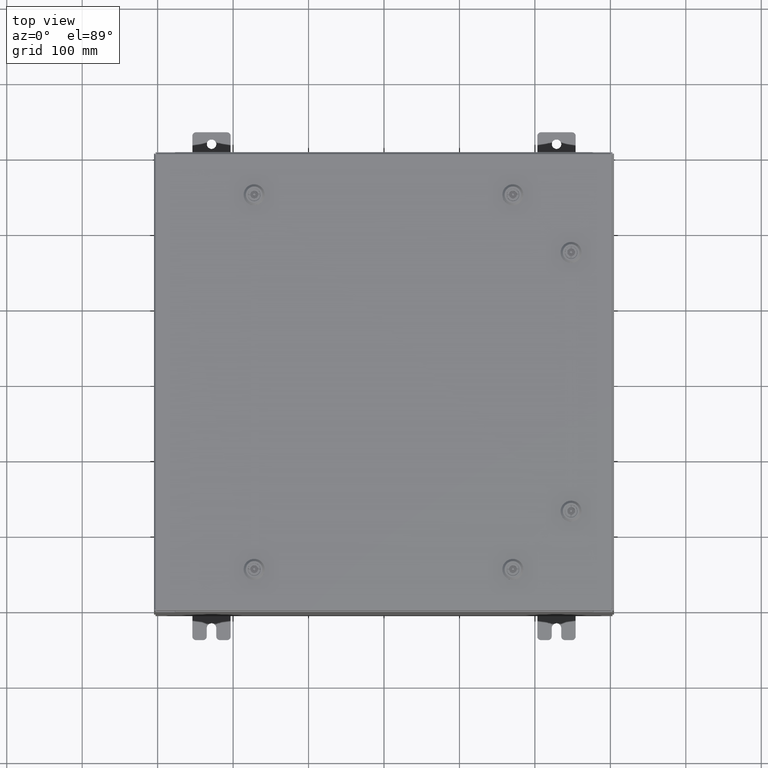
[diagram: clean part render]
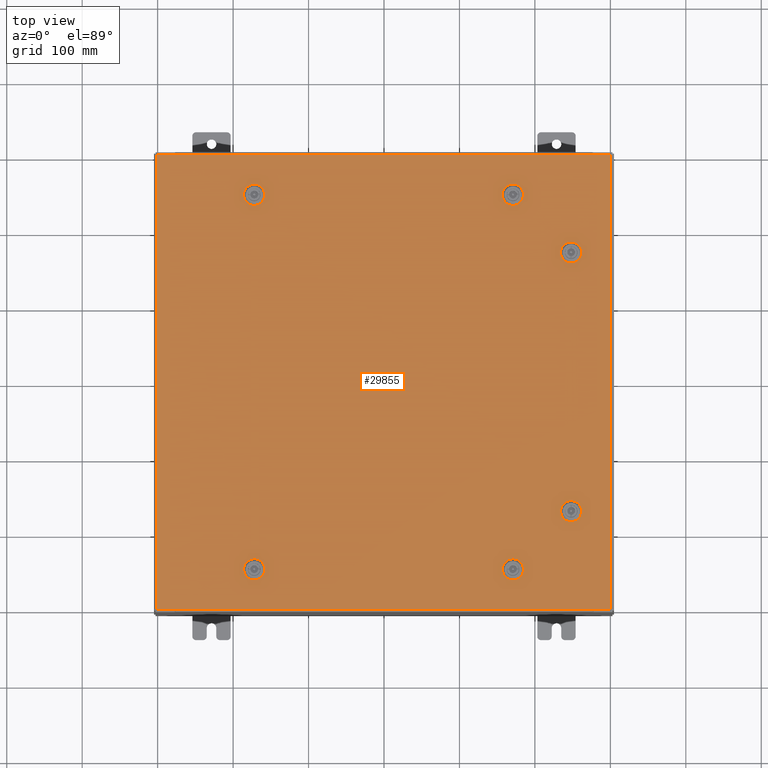
[diagram: same view with one face highlighted and labeled with its STEP entity id]
A machine part, top view. The second image highlights one B-rep face of the part: STEP entity #29855.
In plain terms, the highlighted planar face has unit normal (0, 0, -1).
Its self-contained STEP definition (entity closure, byte-faithful):
#58 = CARTESIAN_POINT ( 'NONE',  ( -6.307499999999987700, 9.787799999999991800, 0.0000000000000000000 ) ) ;
#100 = CARTESIAN_POINT ( 'NONE',  ( 6.749999999999983100, -9.787799999999993600, -2.049967404400325100E-013 ) ) ;
#138 = VERTEX_POINT ( 'NONE', #25671 ) ;
#291 = ORIENTED_EDGE ( 'NONE', *, *, #4212, .F. ) ;
#699 = DIRECTION ( 'NONE',  ( -0.0000000000000000000, -6.982962677686266700E-015, 1.000000000000000000 ) ) ;
#871 = ORIENTED_EDGE ( 'NONE', *, *, #58050, .T. ) ;
#1060 = CARTESIAN_POINT ( 'NONE',  ( 9.392800000000017100, -6.949452375267905600, -4.852776656685395200E-014 ) ) ;
#1373 = EDGE_CURVE ( 'NONE', #26114, #44926, #14703, .T. ) ;
#1891 = CARTESIAN_POINT ( 'NONE',  ( -6.749999999999984900, -9.787799999999993600, -2.521317385144147400E-013 ) ) ;
#1910 = CARTESIAN_POINT ( 'NONE',  ( 11.84980000000000200, 11.84980000000000000, 8.878505979408856000E-016 ) ) ;
#2145 = CARTESIAN_POINT ( 'NONE',  ( -6.749999999999984900, -9.787799999999993600, -2.521317385144147400E-013 ) ) ;
#2211 = EDGE_CURVE ( 'NONE', #60257, #46374, #54651, .T. ) ;
#2861 = CARTESIAN_POINT ( 'NONE',  ( -6.949452375267869200, -9.392799999999997600, -2.493734682567286900E-013 ) ) ;
#2939 = VECTOR ( 'NONE', #44319, 39.37007874015748100 ) ;
#2987 = LINE ( 'NONE', #36987, #53613 ) ;
#3024 = VERTEX_POINT ( 'NONE', #47813 ) ;
#3169 = VECTOR ( 'NONE', #27277, 39.37007874015748100 ) ;
#3298 = DIRECTION ( 'NONE',  ( 1.000000000000000000, 0.0000000000000000000, 0.0000000000000000000 ) ) ;
#3349 = ORIENTED_EDGE ( 'NONE', *, *, #29522, .T. ) ;
#3482 = ORIENTED_EDGE ( 'NONE', *, *, #53968, .F. ) ;
#3778 = CARTESIAN_POINT ( 'NONE',  ( 6.949452375267864700, -10.18279999999999000, -2.063622422052470700E-013 ) ) ;
#4036 = CARTESIAN_POINT ( 'NONE',  ( -6.949452375267869200, 9.392799999999995800, 0.0000000000000000000 ) ) ;
#4212 = EDGE_CURVE ( 'NONE', #46374, #28440, #53020, .T. ) ;
#4247 = DIRECTION ( 'NONE',  ( 5.478697338139235000E-015, 1.000000000000000000, 6.982962677686265900E-015 ) ) ;
#4709 = ORIENTED_EDGE ( 'NONE', *, *, #7181, .F. ) ;
#5011 = DIRECTION ( 'NONE',  ( 1.000000000000000000, 0.0000000000000000000, 6.982962677686287200E-015 ) ) ;
#5154 = CIRCLE ( 'NONE', #42552, 0.4424999999999972800 ) ;
#5276 = CIRCLE ( 'NONE', #7773, 0.4424999999999972800 ) ;
#5581 = FACE_BOUND ( 'NONE', #10274, .T. ) ;
#5642 = DIRECTION ( 'NONE',  ( -1.000000000000000000, -0.0000000000000000000, -0.0000000000000000000 ) ) ;
#6048 = EDGE_LOOP ( 'NONE', ( #54878, #11888, #40292, #60958, #3482 ) ) ;
#6484 = AXIS2_PLACEMENT_3D ( 'NONE', #43636, #27601, #54415 ) ;
#6790 = CIRCLE ( 'NONE', #45139, 0.4424999999999972800 ) ;
#6887 = DIRECTION ( 'NONE',  ( 0.0000000000000000000, 0.0000000000000000000, 1.000000000000000000 ) ) ;
#7053 = DIRECTION ( 'NONE',  ( 0.0000000000000000000, 1.000000000000000000, 6.982962677686287200E-015 ) ) ;
#7181 = EDGE_CURVE ( 'NONE', #54463, #33076, #10640, .T. ) ;
#7773 = AXIS2_PLACEMENT_3D ( 'NONE', #62016, #32684, #3298 ) ;
#7850 = EDGE_CURVE ( 'NONE', #42776, #21717, #11345, .T. ) ;
#8090 = ORIENTED_EDGE ( 'NONE', *, *, #46194, .T. ) ;
#8447 = DIRECTION ( 'NONE',  ( 0.0000000000000000000, 0.0000000000000000000, 1.000000000000000000 ) ) ;
#8565 = CARTESIAN_POINT ( 'NONE',  ( 9.392800000000015400, 6.949452375267905600, 0.0000000000000000000 ) ) ;
#8584 = CARTESIAN_POINT ( 'NONE',  ( 6.949452375267864700, 10.18279999999999000, 0.0000000000000000000 ) ) ;
#8648 = FACE_BOUND ( 'NONE', #44821, .T. ) ;
#8655 = EDGE_CURVE ( 'NONE', #44926, #39794, #37386, .T. ) ;
#8834 = VERTEX_POINT ( 'NONE', #25034 ) ;
#8995 = CARTESIAN_POINT ( 'NONE',  ( -6.550547624732099700, 9.392799999999995800, 0.0000000000000000000 ) ) ;
#9792 = CARTESIAN_POINT ( 'NONE',  ( -6.550547624732093500, 10.18279999999998300, 0.0000000000000000000 ) ) ;
#10274 = EDGE_LOOP ( 'NONE', ( #4709, #41333, #23676, #42194, #44807 ) ) ;
#10476 = DIRECTION ( 'NONE',  ( 0.0000000000000000000, 0.0000000000000000000, 1.000000000000000000 ) ) ;
#10640 = LINE ( 'NONE', #34252, #26736 ) ;
#11110 = EDGE_CURVE ( 'NONE', #54151, #62549, #22520, .T. ) ;
#11137 = CIRCLE ( 'NONE', #59556, 0.4424999999999972800 ) ;
#11345 = CIRCLE ( 'NONE', #30640, 0.4424999999999983400 ) ;
#11879 = CARTESIAN_POINT ( 'NONE',  ( 7.192499999999980400, -9.787799999999993600, -2.019067794551563600E-013 ) ) ;
#11888 = ORIENTED_EDGE ( 'NONE', *, *, #43242, .F. ) ;
#12918 = PLANE ( 'NONE',  #60109 ) ;
#13214 = ORIENTED_EDGE ( 'NONE', *, *, #11110, .F. ) ;
#13349 = AXIS2_PLACEMENT_3D ( 'NONE', #57799, #28478, #62749 ) ;
#13429 = VERTEX_POINT ( 'NONE', #47458 ) ;
#14154 = LINE ( 'NONE', #38514, #51745 ) ;
#14248 = VECTOR ( 'NONE', #19922, 39.37007874015748100 ) ;
#14305 = EDGE_CURVE ( 'NONE', #62549, #47387, #16171, .T. ) ;
#14409 = EDGE_CURVE ( 'NONE', #15856, #49526, #14650, .T. ) ;
#14554 = VERTEX_POINT ( 'NONE', #58093 ) ;
#14650 = LINE ( 'NONE', #47418, #39213 ) ;
#14702 = CIRCLE ( 'NONE', #57473, 0.4424999999999972800 ) ;
#14703 = CIRCLE ( 'NONE', #53799, 0.4424999999999972800 ) ;
#14893 = ORIENTED_EDGE ( 'NONE', *, *, #33927, .F. ) ;
#14939 = DIRECTION ( 'NONE',  ( -6.982962677686266700E-015, -6.982962677686266700E-015, 1.000000000000000000 ) ) ;
#15038 = CARTESIAN_POINT ( 'NONE',  ( 6.749999999999983100, 9.787799999999993600, -4.713499807438223100E-014 ) ) ;
#15287 = EDGE_LOOP ( 'NONE', ( #23316, #60840, #48790, #291 ) ) ;
#15568 = DIRECTION ( 'NONE',  ( -0.0000000000000000000, -6.982962677686266700E-015, 1.000000000000000000 ) ) ;
#15856 = VERTEX_POINT ( 'NONE', #8584 ) ;
#16071 = CARTESIAN_POINT ( 'NONE',  ( -11.84979999999999500, -11.84980000000000000, -2.048885995248197400E-016 ) ) ;
#16171 = LINE ( 'NONE', #22322, #3169 ) ;
#17204 = DIRECTION ( 'NONE',  ( 6.982962677686266700E-015, -0.0000000000000000000, 1.000000000000000000 ) ) ;
#17814 = CARTESIAN_POINT ( 'NONE',  ( -6.307499999999987700, -9.787799999999993600, -2.521317385144147400E-013 ) ) ;
#17837 = DIRECTION ( 'NONE',  ( -1.000000000000000000, 0.0000000000000000000, -0.0000000000000000000 ) ) ;
#18599 = FACE_BOUND ( 'NONE', #6048, .T. ) ;
#18756 = CARTESIAN_POINT ( 'NONE',  ( 9.392800000000011800, -6.550547624732132600, 0.0000000000000000000 ) ) ;
#18771 = VECTOR ( 'NONE', #56945, 39.37007874015748100 ) ;
#19628 = DIRECTION ( 'NONE',  ( -1.000000000000000000, 1.643609201441752500E-014, 0.0000000000000000000 ) ) ;
#19737 = EDGE_CURVE ( 'NONE', #43617, #54151, #53558, .T. ) ;
#19922 = DIRECTION ( 'NONE',  ( 1.000000000000000000, -1.095739467627835000E-014, 6.982962677686171300E-015 ) ) ;
#19929 = DIRECTION ( 'NONE',  ( -6.982962677686266700E-015, -6.982962677686266700E-015, 1.000000000000000000 ) ) ;
#19988 = DIRECTION ( 'NONE',  ( -1.000000000000000000, 0.0000000000000000000, 6.982962677686269100E-015 ) ) ;
#20188 = DIRECTION ( 'NONE',  ( 0.0000000000000000000, 1.000000000000000000, 6.982962677686269100E-015 ) ) ;
#20426 = ORIENTED_EDGE ( 'NONE', *, *, #36097, .F. ) ;
#20857 = VERTEX_POINT ( 'NONE', #58 ) ;
#21042 = EDGE_CURVE ( 'NONE', #31465, #13429, #31241, .T. ) ;
#21717 = VERTEX_POINT ( 'NONE', #37373 ) ;
#21903 = LINE ( 'NONE', #41934, #59501 ) ;
#22285 = EDGE_CURVE ( 'NONE', #3024, #42776, #21903, .T. ) ;
#22322 = CARTESIAN_POINT ( 'NONE',  ( 10.18280000000000200, 6.949452375267901200, 0.0000000000000000000 ) ) ;
#22494 = EDGE_CURVE ( 'NONE', #138, #26114, #53381, .T. ) ;
#22520 = CIRCLE ( 'NONE', #6484, 0.4424999999999972800 ) ;
#22577 = VECTOR ( 'NONE', #19628, 39.37007874015748100 ) ;
#23316 = ORIENTED_EDGE ( 'NONE', *, *, #2211, .F. ) ;
#23676 = ORIENTED_EDGE ( 'NONE', *, *, #44605, .F. ) ;
#23938 = AXIS2_PLACEMENT_3D ( 'NONE', #46307, #699, #20188 ) ;
#24411 = CARTESIAN_POINT ( 'NONE',  ( 6.749999999999983100, -9.787799999999993600, -2.049967404400325100E-013 ) ) ;
#24530 = VERTEX_POINT ( 'NONE', #31307 ) ;
#24573 = EDGE_CURVE ( 'NONE', #8834, #54311, #11137, .T. ) ;
#24589 = CARTESIAN_POINT ( 'NONE',  ( 9.392800000000015400, 6.949452375267905600, 0.0000000000000000000 ) ) ;
#24629 = DIRECTION ( 'NONE',  ( -0.0000000000000000000, -6.982962677686266700E-015, 1.000000000000000000 ) ) ;
#24914 = VERTEX_POINT ( 'NONE', #28216 ) ;
#25034 = CARTESIAN_POINT ( 'NONE',  ( -6.550547624732093500, -10.18279999999998400, -2.548900087721007400E-013 ) ) ;
#25125 = CARTESIAN_POINT ( 'NONE',  ( 11.84980000000000200, 11.84980000000000000, 8.878505979408856000E-016 ) ) ;
#25151 = EDGE_CURVE ( 'NONE', #20857, #46148, #60298, .T. ) ;
#25239 = CARTESIAN_POINT ( 'NONE',  ( 6.949452375267867400, 9.392799999999995800, -4.852776656685374400E-014 ) ) ;
#25671 = CARTESIAN_POINT ( 'NONE',  ( 6.550547624732091700, -10.18279999999998400, -2.091477791901901000E-013 ) ) ;
#25829 = VERTEX_POINT ( 'NONE', #1910 ) ;
#26061 = ORIENTED_EDGE ( 'NONE', *, *, #21042, .T. ) ;
#26114 = VERTEX_POINT ( 'NONE', #3778 ) ;
#26359 = DIRECTION ( 'NONE',  ( 6.982962677686266700E-015, -0.0000000000000000000, 1.000000000000000000 ) ) ;
#26736 = VECTOR ( 'NONE', #36492, 39.37007874015748100 ) ;
#27277 = DIRECTION ( 'NONE',  ( -5.478697338139235000E-015, 1.000000000000000000, -0.0000000000000000000 ) ) ;
#27429 = CIRCLE ( 'NONE', #43770, 0.4424999999999983400 ) ;
#27457 = ORIENTED_EDGE ( 'NONE', *, *, #8655, .F. ) ;
#27531 = ORIENTED_EDGE ( 'NONE', *, *, #7850, .F. ) ;
#27601 = DIRECTION ( 'NONE',  ( 0.0000000000000000000, 0.0000000000000000000, 1.000000000000000000 ) ) ;
#27627 = CARTESIAN_POINT ( 'NONE',  ( 6.550547624732099700, 9.392799999999997600, -4.574222958191072400E-014 ) ) ;
#28067 = EDGE_LOOP ( 'NONE', ( #26061, #8090, #3349, #871 ) ) ;
#28216 = CARTESIAN_POINT ( 'NONE',  ( 10.18280000000000700, -6.550547624732132600, -4.574222958191090100E-014 ) ) ;
#28440 = VERTEX_POINT ( 'NONE', #52702 ) ;
#28452 = ORIENTED_EDGE ( 'NONE', *, *, #14305, .F. ) ;
#28478 = DIRECTION ( 'NONE',  ( -0.0000000000000000000, -6.982962677686266700E-015, 1.000000000000000000 ) ) ;
#28613 = VECTOR ( 'NONE', #38604, 39.37007874015748100 ) ;
#28760 = DIRECTION ( 'NONE',  ( 1.000000000000000000, 0.0000000000000000000, 6.982962677686287200E-015 ) ) ;
#29304 = DIRECTION ( 'NONE',  ( 1.000000000000000000, 1.643609201441752500E-014, 7.785697190085976300E-029 ) ) ;
#29364 = CARTESIAN_POINT ( 'NONE',  ( -6.949452375267865600, 10.18279999999999000, 0.0000000000000000000 ) ) ;
#29413 = VECTOR ( 'NONE', #5642, 39.37007874015748100 ) ;
#29522 = EDGE_CURVE ( 'NONE', #25829, #49769, #55431, .T. ) ;
#29855 = ADVANCED_FACE ( 'NONE', ( #44688, #8648, #33222, #31660, #18599, #5581, #56171 ), #12918, .F. ) ;
#30249 = CIRCLE ( 'NONE', #41791, 0.4424999999999972800 ) ;
#30301 = LINE ( 'NONE', #27627, #18771 ) ;
#30547 = ORIENTED_EDGE ( 'NONE', *, *, #47752, .F. ) ;
#30640 = AXIS2_PLACEMENT_3D ( 'NONE', #1891, #24629, #55672 ) ;
#30901 = VERTEX_POINT ( 'NONE', #58591 ) ;
#30917 = CIRCLE ( 'NONE', #13349, 0.4424999999999972800 ) ;
#31241 = LINE ( 'NONE', #16071, #55742 ) ;
#31274 = ORIENTED_EDGE ( 'NONE', *, *, #22285, .F. ) ;
#31307 = CARTESIAN_POINT ( 'NONE',  ( 7.192499999999980400, 9.787799999999993600, -5.022495905925838200E-014 ) ) ;
#31465 = VERTEX_POINT ( 'NONE', #38616 ) ;
#31660 = FACE_BOUND ( 'NONE', #46759, .T. ) ;
#31864 = AXIS2_PLACEMENT_3D ( 'NONE', #39827, #10476, #44760 ) ;
#32684 = DIRECTION ( 'NONE',  ( 0.0000000000000000000, 0.0000000000000000000, 1.000000000000000000 ) ) ;
#33076 = VERTEX_POINT ( 'NONE', #8995 ) ;
#33222 = FACE_BOUND ( 'NONE', #52478, .T. ) ;
#33927 = EDGE_CURVE ( 'NONE', #21717, #8834, #54423, .T. ) ;
#33996 = CARTESIAN_POINT ( 'NONE',  ( -6.550547624732093500, -10.18279999999998400, -2.548900087721007400E-013 ) ) ;
#34252 = CARTESIAN_POINT ( 'NONE',  ( -6.550547624732099700, 9.392799999999995800, 0.0000000000000000000 ) ) ;
#34404 = DIRECTION ( 'NONE',  ( -6.982962677686266700E-015, -6.982962677686266700E-015, 1.000000000000000000 ) ) ;
#34804 = EDGE_CURVE ( 'NONE', #35886, #24530, #6790, .T. ) ;
#34898 = EDGE_CURVE ( 'NONE', #47387, #43617, #5276, .T. ) ;
#34987 = CARTESIAN_POINT ( 'NONE',  ( -11.84980000000000000, 11.84980000000000000, -1.297627796990525000E-015 ) ) ;
#35107 = VECTOR ( 'NONE', #55860, 39.37007874015748100 ) ;
#35831 = EDGE_CURVE ( 'NONE', #39523, #54463, #52773, .T. ) ;
#35886 = VERTEX_POINT ( 'NONE', #25239 ) ;
#35987 = ORIENTED_EDGE ( 'NONE', *, *, #24573, .F. ) ;
#36097 = EDGE_CURVE ( 'NONE', #39794, #14554, #61168, .T. ) ;
#36255 = CARTESIAN_POINT ( 'NONE',  ( -6.749999999999984900, 9.787799999999991800, 0.0000000000000000000 ) ) ;
#36356 = EDGE_CURVE ( 'NONE', #24914, #60257, #27429, .T. ) ;
#36366 = VECTOR ( 'NONE', #47470, 39.37007874015748100 ) ;
#36414 = DIRECTION ( 'NONE',  ( -0.0000000000000000000, -6.982962677686266700E-015, 1.000000000000000000 ) ) ;
#36492 = DIRECTION ( 'NONE',  ( 1.000000000000000000, 2.739348669069610000E-015, -0.0000000000000000000 ) ) ;
#36893 = EDGE_CURVE ( 'NONE', #14554, #138, #5154, .T. ) ;
#36987 = CARTESIAN_POINT ( 'NONE',  ( -11.84980000000000000, 11.84980000000000000, -1.297627796990525000E-015 ) ) ;
#37373 = CARTESIAN_POINT ( 'NONE',  ( -6.949452375267865600, -10.18279999999999100, 0.0000000000000000000 ) ) ;
#37386 = CIRCLE ( 'NONE', #44614, 0.4424999999999972800 ) ;
#37806 = CARTESIAN_POINT ( 'NONE',  ( -6.749999999999984900, 9.787799999999991800, 0.0000000000000000000 ) ) ;
#37926 = LINE ( 'NONE', #57299, #36366 ) ;
#38514 = CARTESIAN_POINT ( 'NONE',  ( 10.18280000000000600, -6.949452375267901200, -4.852776656685392100E-014 ) ) ;
#38604 = DIRECTION ( 'NONE',  ( 1.095739467627835000E-014, -1.000000000000000000, -6.982962677686269100E-015 ) ) ;
#38616 = CARTESIAN_POINT ( 'NONE',  ( -11.84979999999999500, -11.84980000000000000, -2.048885995248197400E-016 ) ) ;
#39213 = VECTOR ( 'NONE', #62188, 39.37007874015748100 ) ;
#39523 = VERTEX_POINT ( 'NONE', #29364 ) ;
#39794 = VERTEX_POINT ( 'NONE', #60366 ) ;
#39827 = CARTESIAN_POINT ( 'NONE',  ( -6.749999999999984900, 9.787799999999991800, 0.0000000000000000000 ) ) ;
#40292 = ORIENTED_EDGE ( 'NONE', *, *, #34804, .F. ) ;
#41139 = AXIS2_PLACEMENT_3D ( 'NONE', #55720, #26359, #60651 ) ;
#41177 = DIRECTION ( 'NONE',  ( 1.000000000000000000, 0.0000000000000000000, 0.0000000000000000000 ) ) ;
#41333 = ORIENTED_EDGE ( 'NONE', *, *, #35831, .F. ) ;
#41351 = VECTOR ( 'NONE', #29304, 39.37007874015748100 ) ;
#41449 = CARTESIAN_POINT ( 'NONE',  ( -6.550547624732093500, 10.18279999999998300, 0.0000000000000000000 ) ) ;
#41791 = AXIS2_PLACEMENT_3D ( 'NONE', #37806, #8447, #42735 ) ;
#41934 = CARTESIAN_POINT ( 'NONE',  ( -6.550547624732099700, -9.392799999999997600, -2.493734682567286900E-013 ) ) ;
#42194 = ORIENTED_EDGE ( 'NONE', *, *, #25151, .F. ) ;
#42552 = AXIS2_PLACEMENT_3D ( 'NONE', #100, #34404, #5011 ) ;
#42735 = DIRECTION ( 'NONE',  ( 1.000000000000000000, 0.0000000000000000000, 0.0000000000000000000 ) ) ;
#42776 = VERTEX_POINT ( 'NONE', #2861 ) ;
#43242 = EDGE_CURVE ( 'NONE', #24530, #15856, #44910, .T. ) ;
#43617 = VERTEX_POINT ( 'NONE', #8565 ) ;
#43636 = CARTESIAN_POINT ( 'NONE',  ( 9.787800000000007800, 6.750000000000015100, 0.0000000000000000000 ) ) ;
#43770 = AXIS2_PLACEMENT_3D ( 'NONE', #44941, #15568, #49867 ) ;
#43980 = AXIS2_PLACEMENT_3D ( 'NONE', #36255, #6887, #41177 ) ;
#44288 = EDGE_CURVE ( 'NONE', #30901, #35886, #30301, .T. ) ;
#44319 = DIRECTION ( 'NONE',  ( -8.218046007208762600E-015, -1.000000000000000000, 0.0000000000000000000 ) ) ;
#44431 = EDGE_CURVE ( 'NONE', #28440, #24914, #14154, .T. ) ;
#44605 = EDGE_CURVE ( 'NONE', #46148, #39523, #48671, .T. ) ;
#44614 = AXIS2_PLACEMENT_3D ( 'NONE', #59891, #14939, #48580 ) ;
#44688 = FACE_BOUND ( 'NONE', #15287, .T. ) ;
#44760 = DIRECTION ( 'NONE',  ( 1.000000000000000000, 0.0000000000000000000, 0.0000000000000000000 ) ) ;
#44807 = ORIENTED_EDGE ( 'NONE', *, *, #51600, .F. ) ;
#44821 = EDGE_LOOP ( 'NONE', ( #28452, #13214, #51071, #49015 ) ) ;
#44910 = CIRCLE ( 'NONE', #41139, 0.4424999999999972800 ) ;
#44926 = VERTEX_POINT ( 'NONE', #11879 ) ;
#44941 = CARTESIAN_POINT ( 'NONE',  ( 9.787800000000007800, -6.750000000000015100, -4.713499807438240100E-014 ) ) ;
#45139 = AXIS2_PLACEMENT_3D ( 'NONE', #46590, #17204, #51520 ) ;
#45629 = CARTESIAN_POINT ( 'NONE',  ( 10.18280000000000200, 6.949452375267901200, 0.0000000000000000000 ) ) ;
#46148 = VERTEX_POINT ( 'NONE', #41449 ) ;
#46194 = EDGE_CURVE ( 'NONE', #13429, #25829, #37926, .T. ) ;
#46307 = CARTESIAN_POINT ( 'NONE',  ( 9.787800000000007800, -6.750000000000015100, -4.713499807438240100E-014 ) ) ;
#46374 = VERTEX_POINT ( 'NONE', #53447 ) ;
#46590 = CARTESIAN_POINT ( 'NONE',  ( 6.749999999999983100, 9.787799999999993600, -4.713499807438223100E-014 ) ) ;
#46759 = EDGE_LOOP ( 'NONE', ( #14893, #27531, #31274, #30547, #35987 ) ) ;
#47223 = DIRECTION ( 'NONE',  ( 0.0000000000000000000, 0.0000000000000000000, -1.000000000000000000 ) ) ;
#47387 = VERTEX_POINT ( 'NONE', #45629 ) ;
#47418 = CARTESIAN_POINT ( 'NONE',  ( 6.550547624732091700, 10.18279999999998400, -4.574222958191066700E-014 ) ) ;
#47458 = CARTESIAN_POINT ( 'NONE',  ( 11.84980000000000000, -11.84980000000000000, -2.048885995248197400E-016 ) ) ;
#47470 = DIRECTION ( 'NONE',  ( 0.0000000000000000000, 1.000000000000000000, 0.0000000000000000000 ) ) ;
#47752 = EDGE_CURVE ( 'NONE', #54311, #3024, #30917, .T. ) ;
#47813 = CARTESIAN_POINT ( 'NONE',  ( -6.550547624732099700, -9.392799999999997600, -2.493734682567286900E-013 ) ) ;
#48580 = DIRECTION ( 'NONE',  ( 1.000000000000000000, 0.0000000000000000000, 6.982962677686287200E-015 ) ) ;
#48671 = LINE ( 'NONE', #9792, #22577 ) ;
#48790 = ORIENTED_EDGE ( 'NONE', *, *, #44431, .F. ) ;
#49015 = ORIENTED_EDGE ( 'NONE', *, *, #34898, .F. ) ;
#49340 = DIRECTION ( 'NONE',  ( 6.982962677686266700E-015, -0.0000000000000000000, 1.000000000000000000 ) ) ;
#49526 = VERTEX_POINT ( 'NONE', #62662 ) ;
#49769 = VERTEX_POINT ( 'NONE', #34987 ) ;
#49867 = DIRECTION ( 'NONE',  ( 0.0000000000000000000, 1.000000000000000000, 6.982962677686252500E-015 ) ) ;
#49974 = CARTESIAN_POINT ( 'NONE',  ( 9.392800000000011800, 6.550547624732132600, 0.0000000000000000000 ) ) ;
#50244 = CARTESIAN_POINT ( 'NONE',  ( 10.18280000000000600, 6.550547624732132600, 0.0000000000000000000 ) ) ;
#50378 = DIRECTION ( 'NONE',  ( 1.000000000000000000, -0.0000000000000000000, -0.0000000000000000000 ) ) ;
#50946 = CARTESIAN_POINT ( 'NONE',  ( 6.550547624732099700, -9.392799999999997600, -2.036312386748179800E-013 ) ) ;
#51071 = ORIENTED_EDGE ( 'NONE', *, *, #19737, .F. ) ;
#51520 = DIRECTION ( 'NONE',  ( -1.000000000000000000, 0.0000000000000000000, 6.982962677686269100E-015 ) ) ;
#51600 = EDGE_CURVE ( 'NONE', #33076, #20857, #30249, .T. ) ;
#51745 = VECTOR ( 'NONE', #4247, 39.37007874015748100 ) ;
#52478 = EDGE_LOOP ( 'NONE', ( #20426, #27457, #55486, #56293, #61248 ) ) ;
#52702 = CARTESIAN_POINT ( 'NONE',  ( 10.18280000000000600, -6.949452375267901200, -4.852776656685392100E-014 ) ) ;
#52773 = CIRCLE ( 'NONE', #31864, 0.4424999999999983400 ) ;
#53020 = CIRCLE ( 'NONE', #23938, 0.4424999999999972800 ) ;
#53381 = LINE ( 'NONE', #53787, #14248 ) ;
#53447 = CARTESIAN_POINT ( 'NONE',  ( 9.392800000000015400, -6.949452375267905600, -4.852776656685395200E-014 ) ) ;
#53558 = LINE ( 'NONE', #24589, #2939 ) ;
#53613 = VECTOR ( 'NONE', #61638, 39.37007874015748100 ) ;
#53787 = CARTESIAN_POINT ( 'NONE',  ( 6.550547624732091700, -10.18279999999998400, -2.091477791901900700E-013 ) ) ;
#53799 = AXIS2_PLACEMENT_3D ( 'NONE', #24411, #19929, #28760 ) ;
#53968 = EDGE_CURVE ( 'NONE', #49526, #30901, #14702, .T. ) ;
#54151 = VERTEX_POINT ( 'NONE', #49974 ) ;
#54311 = VERTEX_POINT ( 'NONE', #17814 ) ;
#54415 = DIRECTION ( 'NONE',  ( 1.000000000000000000, 0.0000000000000000000, 0.0000000000000000000 ) ) ;
#54423 = LINE ( 'NONE', #33996, #41351 ) ;
#54463 = VERTEX_POINT ( 'NONE', #4036 ) ;
#54651 = LINE ( 'NONE', #1060, #28613 ) ;
#54878 = ORIENTED_EDGE ( 'NONE', *, *, #14409, .F. ) ;
#55431 = LINE ( 'NONE', #25125, #29413 ) ;
#55486 = ORIENTED_EDGE ( 'NONE', *, *, #1373, .F. ) ;
#55672 = DIRECTION ( 'NONE',  ( 0.0000000000000000000, 1.000000000000000000, 6.982962677686270700E-015 ) ) ;
#55720 = CARTESIAN_POINT ( 'NONE',  ( 6.749999999999983100, 9.787799999999993600, -4.713499807438223100E-014 ) ) ;
#55742 = VECTOR ( 'NONE', #50378, 39.37007874015748100 ) ;
#55860 = DIRECTION ( 'NONE',  ( -1.000000000000000000, -2.739348669069625000E-015, -6.982962677686265900E-015 ) ) ;
#56171 = FACE_OUTER_BOUND ( 'NONE', #28067, .T. ) ;
#56293 = ORIENTED_EDGE ( 'NONE', *, *, #22494, .F. ) ;
#56945 = DIRECTION ( 'NONE',  ( 1.000000000000000000, -2.739348669069625000E-015, -6.982962677686286400E-015 ) ) ;
#57299 = CARTESIAN_POINT ( 'NONE',  ( 11.84980000000000000, -11.84980000000000000, -2.048885995248197400E-016 ) ) ;
#57473 = AXIS2_PLACEMENT_3D ( 'NONE', #15038, #49340, #19988 ) ;
#57799 = CARTESIAN_POINT ( 'NONE',  ( -6.749999999999984900, -9.787799999999993600, -2.521317385144147400E-013 ) ) ;
#58050 = EDGE_CURVE ( 'NONE', #49769, #31465, #2987, .T. ) ;
#58093 = CARTESIAN_POINT ( 'NONE',  ( 6.550547624732099700, -9.392799999999997600, -2.036312386748179800E-013 ) ) ;
#58591 = CARTESIAN_POINT ( 'NONE',  ( 6.550547624732099700, 9.392799999999997600, -4.574222958191072400E-014 ) ) ;
#59501 = VECTOR ( 'NONE', #61433, 39.37007874015748100 ) ;
#59556 = AXIS2_PLACEMENT_3D ( 'NONE', #2145, #36414, #7053 ) ;
#59891 = CARTESIAN_POINT ( 'NONE',  ( 6.749999999999983100, -9.787799999999993600, -2.049967404400325100E-013 ) ) ;
#60109 = AXIS2_PLACEMENT_3D ( 'NONE', #61572, #47223, #17837 ) ;
#60257 = VERTEX_POINT ( 'NONE', #18756 ) ;
#60298 = CIRCLE ( 'NONE', #43980, 0.4424999999999972800 ) ;
#60366 = CARTESIAN_POINT ( 'NONE',  ( 6.949452375267867400, -9.392799999999995800, 0.0000000000000000000 ) ) ;
#60651 = DIRECTION ( 'NONE',  ( -1.000000000000000000, 0.0000000000000000000, 6.982962677686269100E-015 ) ) ;
#60840 = ORIENTED_EDGE ( 'NONE', *, *, #36356, .F. ) ;
#60958 = ORIENTED_EDGE ( 'NONE', *, *, #44288, .F. ) ;
#61168 = LINE ( 'NONE', #50946, #35107 ) ;
#61248 = ORIENTED_EDGE ( 'NONE', *, *, #36893, .F. ) ;
#61433 = DIRECTION ( 'NONE',  ( -1.000000000000000000, 2.739348669069610000E-015, 7.785697190086040200E-029 ) ) ;
#61572 = CARTESIAN_POINT ( 'NONE',  ( 0.0000000000000000000, 0.0000000000000000000, 0.0000000000000000000 ) ) ;
#61638 = DIRECTION ( 'NONE',  ( 0.0000000000000000000, -1.000000000000000000, 0.0000000000000000000 ) ) ;
#62016 = CARTESIAN_POINT ( 'NONE',  ( 9.787800000000007800, 6.750000000000015100, 0.0000000000000000000 ) ) ;
#62188 = DIRECTION ( 'NONE',  ( -1.000000000000000000, -1.095739467627835000E-014, 6.982962677686269100E-015 ) ) ;
#62549 = VERTEX_POINT ( 'NONE', #50244 ) ;
#62662 = CARTESIAN_POINT ( 'NONE',  ( 6.550547624732091700, 10.18279999999998400, -4.574222958191066700E-014 ) ) ;
#62749 = DIRECTION ( 'NONE',  ( 0.0000000000000000000, 1.000000000000000000, 6.982962677686287200E-015 ) ) ;